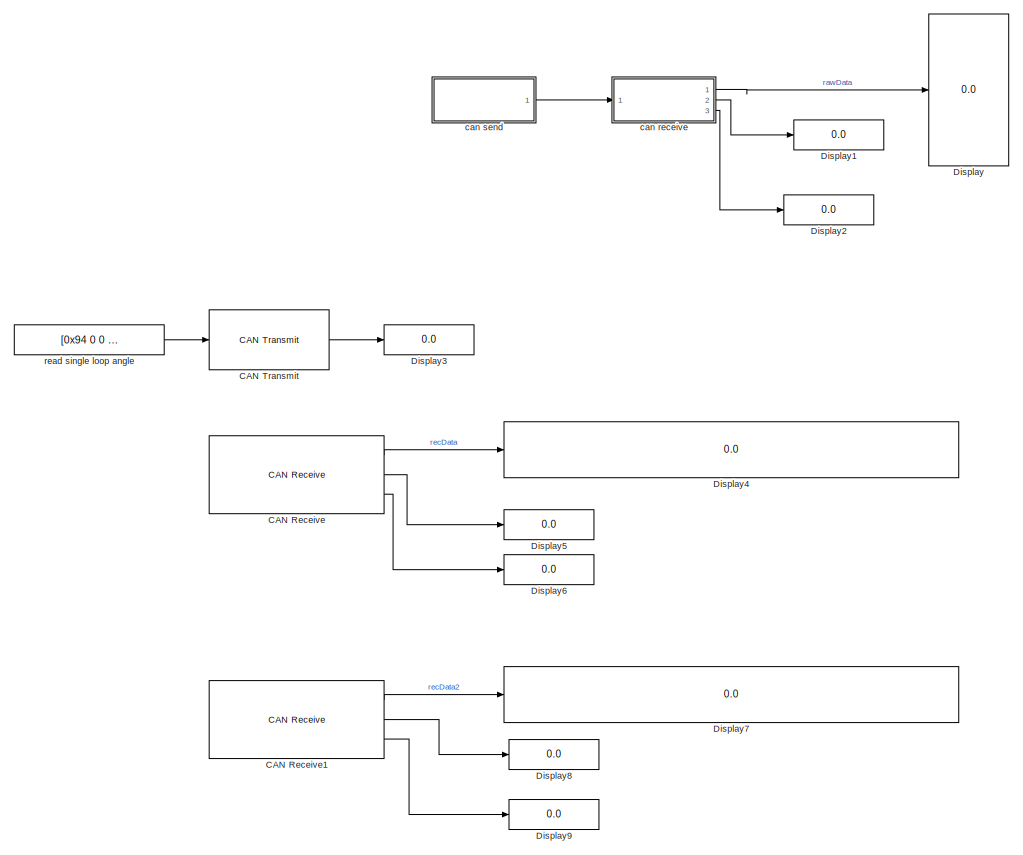
[diagram: root canvas - part 1/3, top right region]
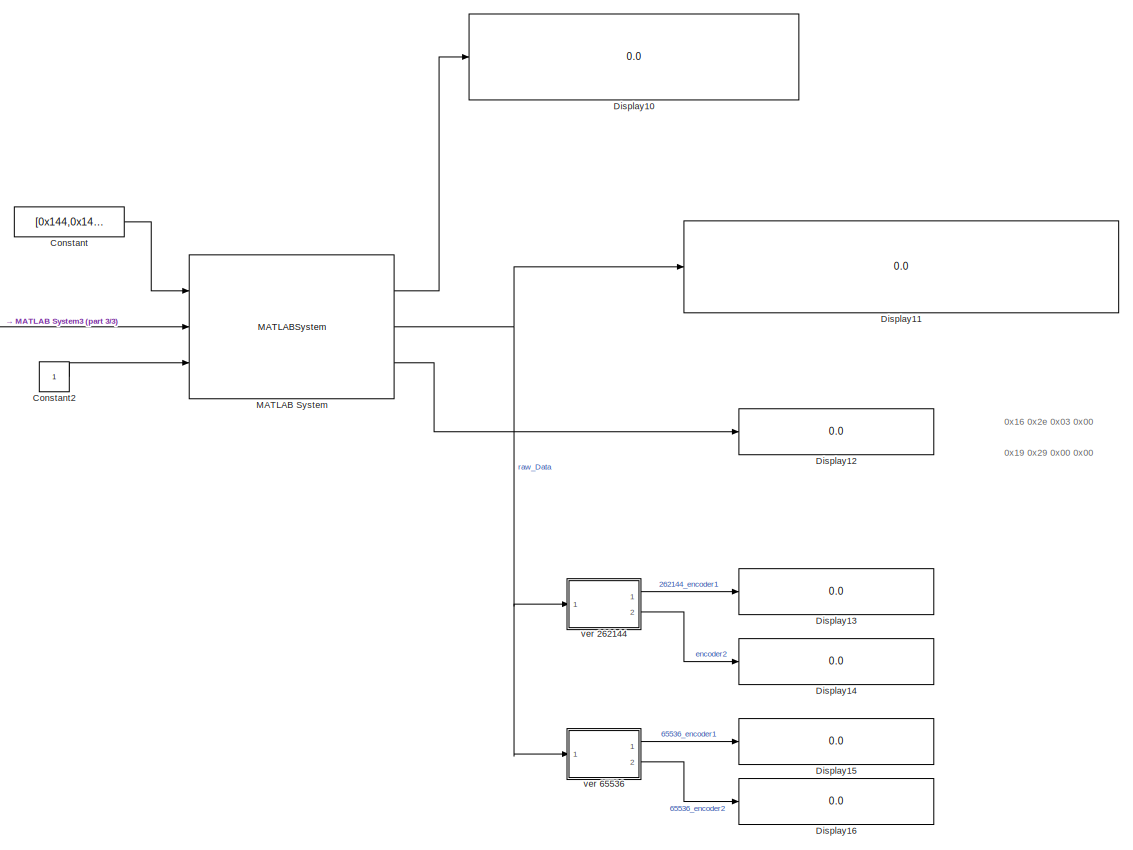
[diagram: root canvas - part 2/3, bottom center region]
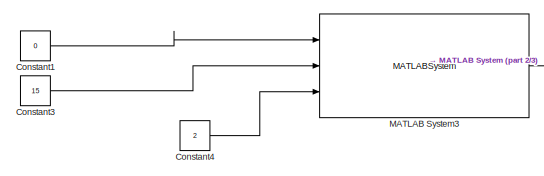
[diagram: root canvas - part 3/3, bottom left region]
MODEL slx_6d9ca1b9e7a7
KIND model
CONFIG AbsTol = auto
CONFIG EnableMultiTasking = on
CONFIG FixedStep = 0.005
CONFIG MaxStep = auto
CONFIG MinStep = auto
CONFIG RelTol = 1e-3
CONFIG SampleTimeConstraint = Unconstrained
CONFIG SolverName = FixedStepAuto
CONFIG StartTime = 0.0
CONFIG StopTime = 300
BLOCK [Reference] CAN Receive  REF=raspberrypiCommlib/CAN Receive
  Commented = on
  Ports = [0, 3]
  SourceBlock = raspberrypiCommlib/CAN Receive
  SourceProductBaseCode = RASPPI
  SourceType = codertarget.raspi.internal.CANReceive
BLOCK [Reference] CAN Receive1  REF=raspberrypiCommlib/CAN Receive
  Commented = on
  Ports = [0, 3]
  SourceBlock = raspberrypiCommlib/CAN Receive
  SourceProductBaseCode = RASPPI
  SourceType = codertarget.raspi.internal.CANReceive
BLOCK [Reference] CAN Transmit  REF=raspberrypiCommlib/CAN Transmit
  Commented = on
  Ports = [1, 1]
  SourceBlock = raspberrypiCommlib/CAN Transmit
  SourceProductBaseCode = RASPPI
  SourceType = codertarget.raspi.internal.CANTransmit
BLOCK [Constant] Constant
  Value = [0x144,0x142]
BLOCK [Constant] Constant1
  Value = 0
BLOCK [Constant] Constant2
BLOCK [Constant] Constant3
  Value = 15
BLOCK [Constant] Constant4
  Value = 2
BLOCK [Display] Display
  Commented = on
  Decimation = 1
  Format = hex (Stored Integer)
  Ports = [1]
BLOCK [Display] Display1
  Commented = on
  Decimation = 1
  Ports = [1]
BLOCK [Display] Display10
  Decimation = 1
  Format = hex (Stored Integer)
  Ports = [1]
BLOCK [Display] Display11
  Decimation = 1
  Format = hex (Stored Integer)
  Ports = [1]
BLOCK [Display] Display12
  Decimation = 1
  Format = hex (Stored Integer)
  Ports = [1]
BLOCK [Display] Display13
  Decimation = 1
  Format = hex (Stored Integer)
  Ports = [1]
BLOCK [Display] Display14
  Decimation = 1
  Format = hex (Stored Integer)
  Ports = [1]
BLOCK [Display] Display15
  Decimation = 1
  Format = hex (Stored Integer)
  Ports = [1]
BLOCK [Display] Display16
  Decimation = 1
  Format = hex (Stored Integer)
  Ports = [1]
BLOCK [Display] Display2
  Commented = on
  Decimation = 1
  Ports = [1]
BLOCK [Display] Display3
  Commented = on
  Decimation = 1
  Ports = [1]
BLOCK [Display] Display4
  Commented = on
  Decimation = 1
  Format = hex (Stored Integer)
  Ports = [1]
BLOCK [Display] Display5
  Commented = on
  Decimation = 1
  Ports = [1]
BLOCK [Display] Display6
  Commented = on
  Decimation = 1
  Ports = [1]
BLOCK [Display] Display7
  Commented = on
  Decimation = 1
  Format = hex (Stored Integer)
  Ports = [1]
BLOCK [Display] Display8
  Commented = on
  Decimation = 1
  Ports = [1]
BLOCK [Display] Display9
  Commented = on
  Decimation = 1
  Ports = [1]
BLOCK [MATLABSystem] MATLAB System
  MaskDisplay = disp('CAN_Driver');\nport_label('input',1,'canID_array');\nport_label('input',2,'send_RawData');\nport_label('input',3,'dev_Num');\nport_label('output',1,'recv_ID');\nport_label('output',2,'recv_rawData');\nport_label('output',3,'err');
  MaskType = canSendRecv
  Ports = [3, 3]
  System = canSendRecv
  canPort = can1
BLOCK [MATLABSystem] MATLAB System3
  MaskDisplay = disp('posCtr_and_offset');\nport_label('input',1,'pos_des');\nport_label('input',2,'speed_des');\nport_label('input',3,'set_Offset_Num');\nport_label('output',1,'cmd');
  MaskType = posCtr_and_offset
  Ports = [3, 1]
  SimulateUsing = Code generation
  System = posCtr_and_offset
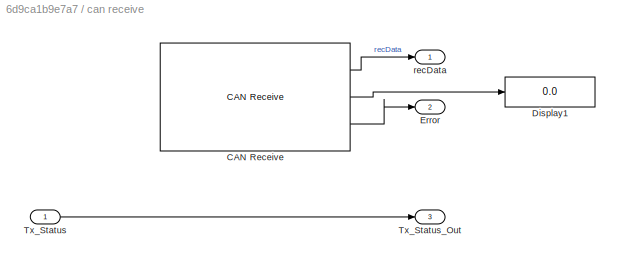
BLOCK [SubSystem] can receive
  Commented = on
  Ports = [1, 3]
  RequestExecContextInheritance = off
  TreatAsAtomicUnit = on
BLOCK [Reference] can receive/CAN Receive  REF=raspberrypiCommlib/CAN Receive
  Ports = [0, 3]
  SourceBlock = raspberrypiCommlib/CAN Receive
  SourceProductBaseCode = RASPPI
  SourceType = codertarget.raspi.internal.CANReceive
BLOCK [Display] can receive/Display1
  Decimation = 1
  Ports = [1]
BLOCK [Outport] can receive/Error
  Port = 2
BLOCK [Inport] can receive/Tx_Status
BLOCK [Outport] can receive/Tx_Status_Out
  Port = 3
BLOCK [Outport] can receive/recData
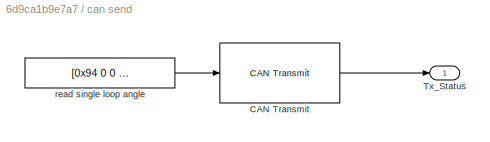
BLOCK [SubSystem] can send
  Commented = on
  Ports = [0, 1]
  RequestExecContextInheritance = off
  TreatAsAtomicUnit = on
BLOCK [Reference] can send/CAN Transmit  REF=raspberrypiCommlib/CAN Transmit
  Ports = [1, 1]
  SourceBlock = raspberrypiCommlib/CAN Transmit
  SourceProductBaseCode = RASPPI
  SourceType = codertarget.raspi.internal.CANTransmit
BLOCK [Outport] can send/Tx_Status
BLOCK [Constant] can send/read single loop angle
  OutDataTypeStr = uint8
  Value = [0x94 0 0 0 0 0 0 0]
BLOCK [Constant] read single loop angle
  Commented = on
  OutDataTypeStr = uint8
  Value = [0x94 0 0 0 0 0 0 0]
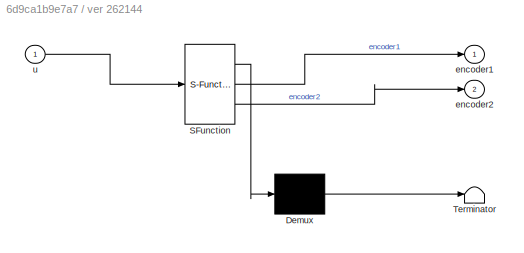
BLOCK [SubSystem] ver 262144
  ErrorFcn = Stateflow.Translate.translate
  PermitHierarchicalResolution = ExplicitOnly
  Ports = [1, 2]
  RequestExecContextInheritance = off
  SFBlockType = MATLAB Function
  TreatAsAtomicUnit = on
BLOCK [Demux] ver 262144/ Demux 
  Outputs = 1
  Ports = [1, 1]
BLOCK [S-Function] ver 262144/ SFunction 
  EnableBusSupport = on
  FunctionName = sf_sfun
  PortCounts = [1 3]
  Ports = [1, 3]
  SFcnIsStateOwnerBlock = off
  SFunctionDeploymentMode = off
  Tag = Stateflow S-Function 2
BLOCK [Terminator] ver 262144/ Terminator 
BLOCK [Outport] ver 262144/encoder1
BLOCK [Outport] ver 262144/encoder2
  Port = 2
BLOCK [Inport] ver 262144/u
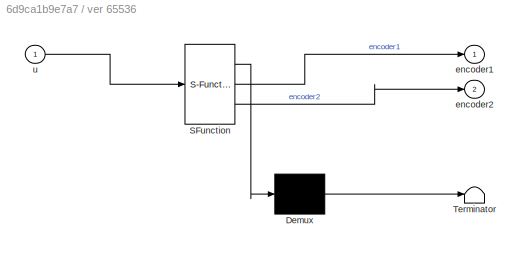
BLOCK [SubSystem] ver 65536
  ErrorFcn = Stateflow.Translate.translate
  PermitHierarchicalResolution = ExplicitOnly
  Ports = [1, 2]
  RequestExecContextInheritance = off
  SFBlockType = MATLAB Function
  TreatAsAtomicUnit = on
BLOCK [Demux] ver 65536/ Demux 
  Outputs = 1
  Ports = [1, 1]
BLOCK [S-Function] ver 65536/ SFunction 
  EnableBusSupport = on
  FunctionName = sf_sfun
  PortCounts = [1 3]
  Ports = [1, 3]
  SFcnIsStateOwnerBlock = off
  SFunctionDeploymentMode = off
  Tag = Stateflow S-Function 1
BLOCK [Terminator] ver 65536/ Terminator 
BLOCK [Outport] ver 65536/encoder1
BLOCK [Outport] ver 65536/encoder2
  Port = 2
BLOCK [Inport] ver 65536/u
ANNOTATION (root): 0x16 0x2e 0x03 0x00
ANNOTATION (root): 0x19 0x29 0x00 0x00
LINE CAN Receive1:1 -> Display7:1
LINE CAN Receive1:2 -> Display8:1
LINE CAN Receive1:3 -> Display9:1
LINE CAN Receive:1 -> Display4:1
LINE CAN Receive:2 -> Display5:1
LINE CAN Receive:3 -> Display6:1
LINE CAN Transmit:1 -> Display3:1
LINE Constant1:1 -> MATLAB System3:1
LINE Constant2:1 -> MATLAB System:3
LINE Constant3:1 -> MATLAB System3:2
LINE Constant4:1 -> MATLAB System3:3
LINE Constant:1 -> MATLAB System:1
LINE MATLAB System3:1 -> MATLAB System:2
LINE MATLAB System:1 -> Display10:1
NET MATLAB System:2 -> Display11:1, ver 262144:1, ver 65536:1
LINE MATLAB System:3 -> Display12:1
LINE can receive/CAN Receive:1 -> can receive/recData:1
LINE can receive/CAN Receive:2 -> can receive/Display1:1
LINE can receive/CAN Receive:3 -> can receive/Error:1
LINE can receive/Tx_Status:1 -> can receive/Tx_Status_Out:1
LINE can receive:1 -> Display:1
LINE can receive:2 -> Display1:1
LINE can receive:3 -> Display2:1
LINE can send/CAN Transmit:1 -> can send/Tx_Status:1
LINE can send/read single loop angle:1 -> can send/CAN Transmit:1
LINE can send:1 -> can receive:1
LINE read single loop angle:1 -> CAN Transmit:1
LINE ver 262144:1 -> Display13:1
LINE ver 262144:2 -> Display14:1
LINE ver 65536:1 -> Display15:1
LINE ver 65536:2 -> Display16:1
note: NET lines group one-source signal fan-out (src -> all destinations, sorted); 1:1 wires keep LINE
CHART ver 262144 states=1 transitions=1
  STATE_LABEL 'eML_blk_kernel()'
  STATE_LABEL "SCRIPT:\nfunction [encoder1,encoder2] = fcn(u)\nencoder1=double(typecast(u(1:4),'uint32'))/100;\nencoder2=double(typecast(u(5:8),'uint32'))/100;\n"
CHART ver 65536 states=1 transitions=1
  STATE_LABEL 'eML_blk_kernel()'
  STATE_LABEL "SCRIPT:\nfunction [encoder1,encoder2] = fcn(u)\n% encoder1 for the upper encoder\nencoder2=double(typecast(u(1:2),'uint16'))/65536*360;\nencoder1=double(typecast(u(3:4),'uint16'))/65536*360;\n"
CHART  states=0 transitions=0
CHART  states=0 transitions=0
